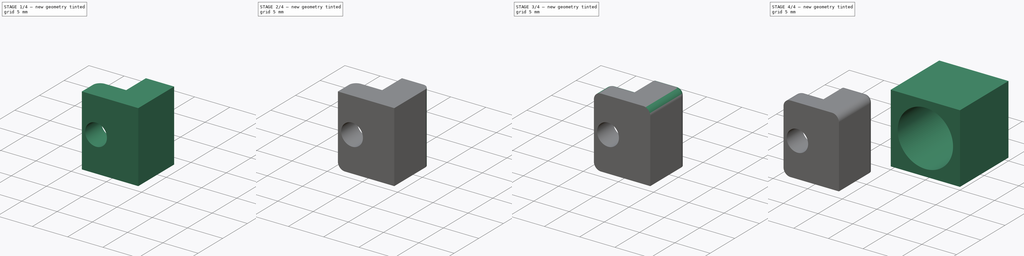
[diagram: build sequence overview — one tinted view per stage of 4, left to right]
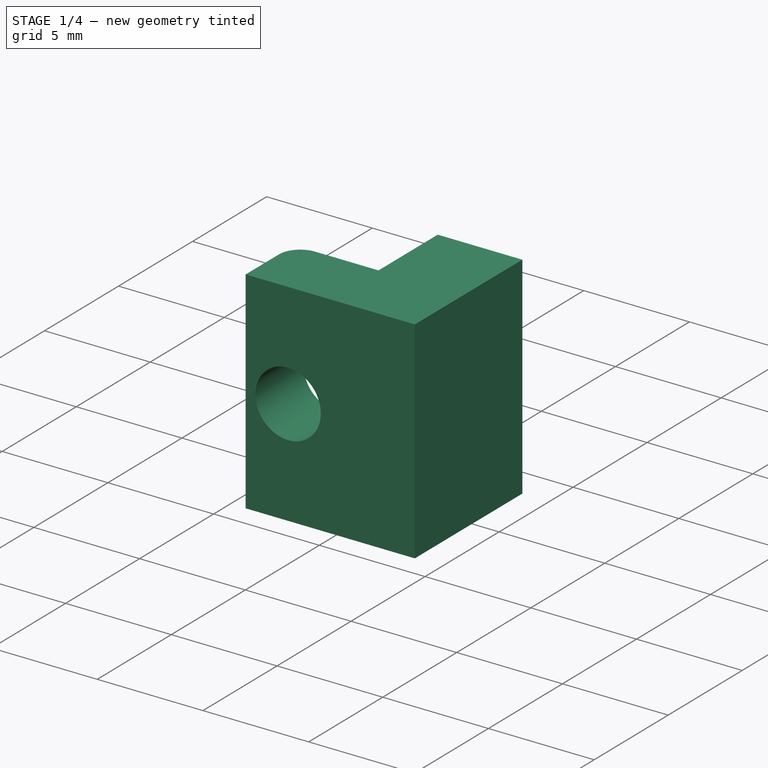
[diagram: stage 1 of 4 — iso view after this stage's code; geometry added in this stage tinted green]
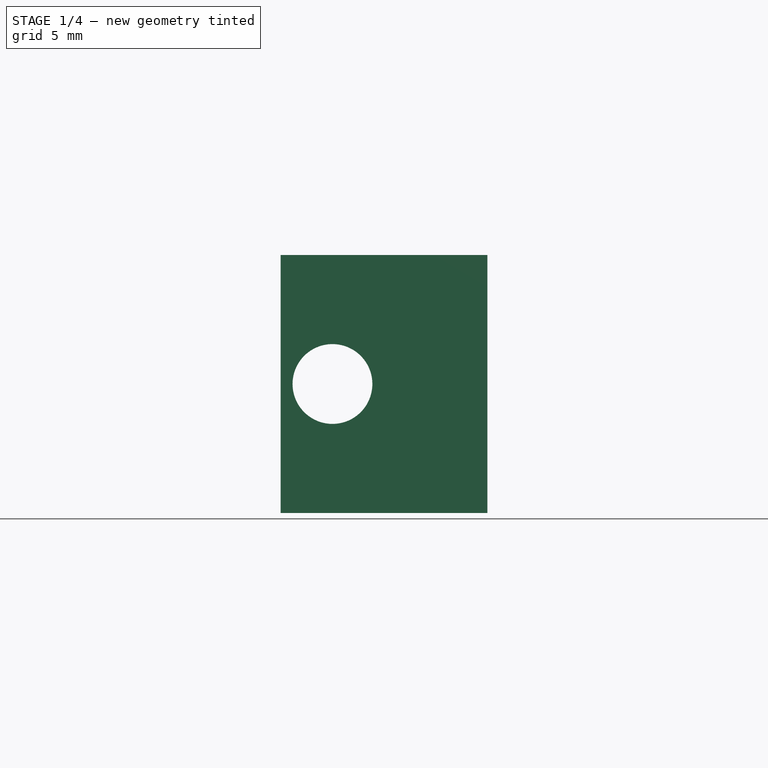
[diagram: stage 1 of 4 — front view after this stage's code; geometry added in this stage tinted green]
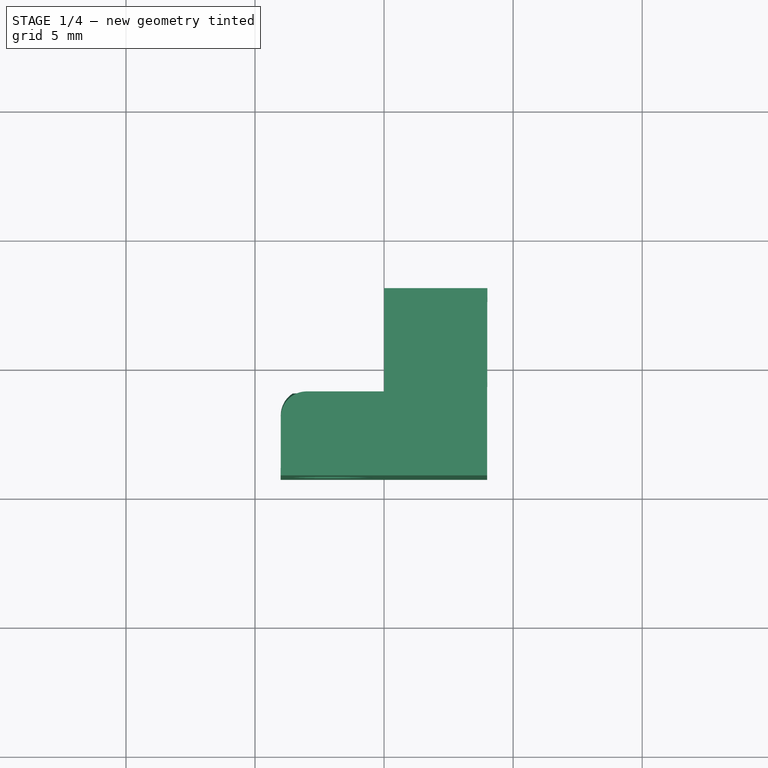
[diagram: stage 1 of 4 — top view after this stage's code; geometry added in this stage tinted green]
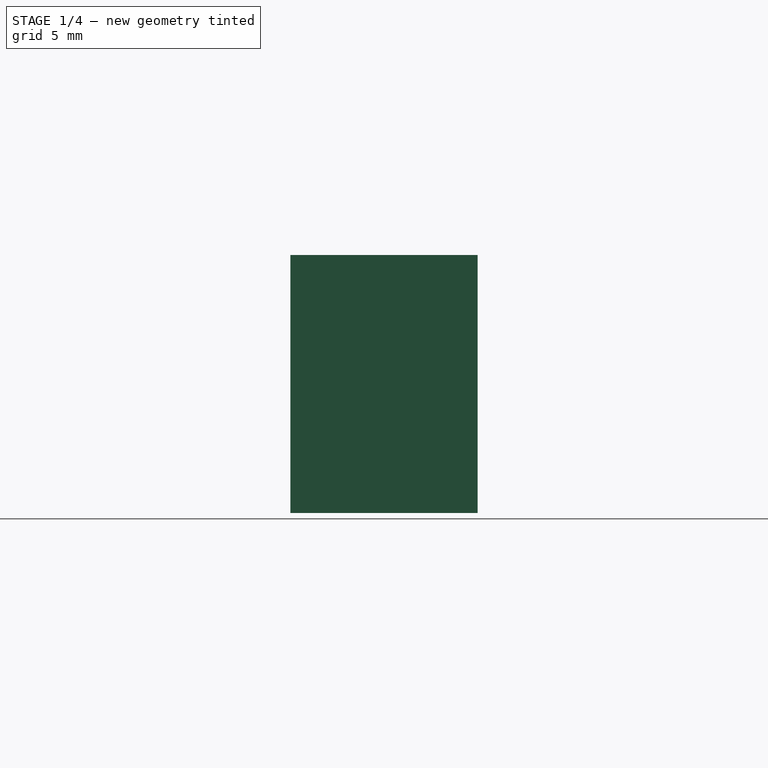
[diagram: stage 1 of 4 — right view after this stage's code; geometry added in this stage tinted green]
FCSTD DOCUMENT  (FreeCAD 0.18R4 (GitTag))
Label: test
License: All rights reserved
LicenseURL: http://en.wikipedia.org/wiki/All_rights_reserved
objects: PartDesign::Fillet×6, Sketcher::SketchObject×3, Part::Box×1, Part::Cylinder×1, Part::Cut×1, PartDesign::Pad×1, PartDesign::Pocket×1, PartDesign::Body×1
note: 17 computed .brp shape members not serialized (recipe doc carries the construction recipe); baked Part::Feature solids carry a one-line shape summary decoded from their .brp

FEATURE [Sketcher::SketchObject] Sketch
  MapMode = 5
  Support = -> [XY_Plane]
  sketch-geometry (8):
    g0: LineSegment StartX=-9 StartY=-6 StartZ=0 EndX=-9.00624 EndY=-9.25098 EndZ=0
    g1: LineSegment StartX=-9.00624 StartY=-9.25098 StartZ=0 EndX=-1.00624 EndY=-9.25098 EndZ=0
    g2: LineSegment StartX=-1.00624 StartY=-9.25098 StartZ=0 EndX=-1.00624 EndY=-6.2336 EndZ=0
    g3: LineSegment StartX=-1.00624 StartY=-6.2336 StartZ=0 EndX=-1 EndY=-2 EndZ=0
    g4: LineSegment StartX=-1 StartY=-2 StartZ=0 EndX=-4 EndY=-2 EndZ=0
    g5: LineSegment StartX=-4 StartY=-2 StartZ=0 EndX=-5 EndY=-2 EndZ=0
    g6: LineSegment StartX=-5 StartY=-2 StartZ=0 EndX=-5 EndY=-6 EndZ=0
    g7: LineSegment StartX=-5 StartY=-6 StartZ=0 EndX=-9 EndY=-6 EndZ=0
  constraints (11):
    c: Coincident(g0,g1)
    c: Horizontal(g1)
    c: Coincident(g1,g2)
    c: Vertical(g2)
    c: Coincident(g2,g3)
    c: Coincident(g4,g5)
    c: Coincident(g5,g6)
    c: Coincident(g6,g7)
    c: Coincident(g7,g0)
    c: Distance(g1) = 8
    c: Coincident(g3,g4)
FEATURE [PartDesign::Pad] Pad
  Length = 10
  Length2 = 100
  Profile = -> Sketch
  Type = 0
FEATURE [Sketcher::SketchObject] Sketch001
  MapMode = 5
  Placement = pos=(0,-6,0) rot=(0,0.707107,0.707107;3.14159rad)
  Support = -> [Pad]
FEATURE [Sketcher::SketchObject] Sketch002
  MapMode = 5
  Placement = pos=(0,-6,0) rot=(0,0.707107,0.707107;3.14159rad)
  Support = -> [Pad]
  sketch-geometry (1):
    g0: Circle CenterX=7 CenterY=5 CenterZ=0 NormalX=0 NormalY=0 NormalZ=1 AngleXU=0 Radius=1.54595
FEATURE [PartDesign::Pocket] Pocket
  BaseFeature = -> Pad
  Length = 5
  Length2 = 100
  Profile = -> Sketch002
  Type = 1
FEATURE [PartDesign::Fillet] Fillet
  Base = -> Pocket [Edge1]
  BaseFeature = -> Pocket
  Radius = 1
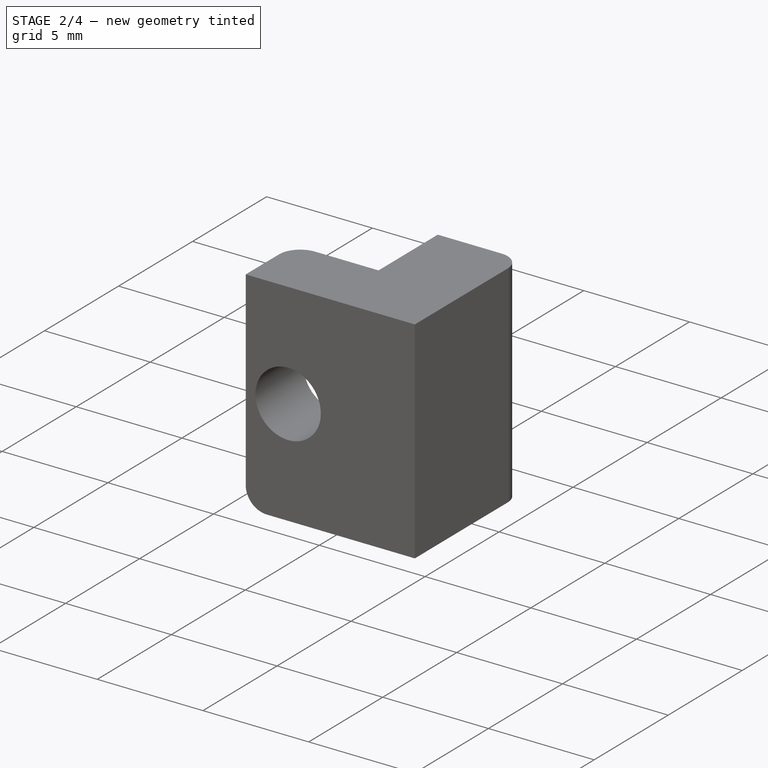
[diagram: stage 2 of 4 — iso view after this stage's code; geometry added in this stage tinted green]
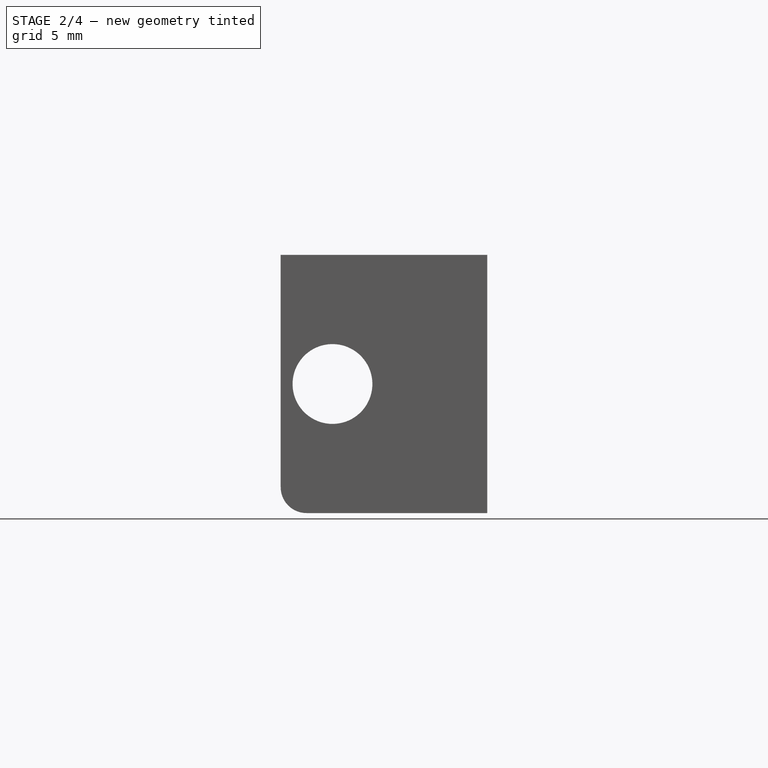
[diagram: stage 2 of 4 — front view after this stage's code; geometry added in this stage tinted green]
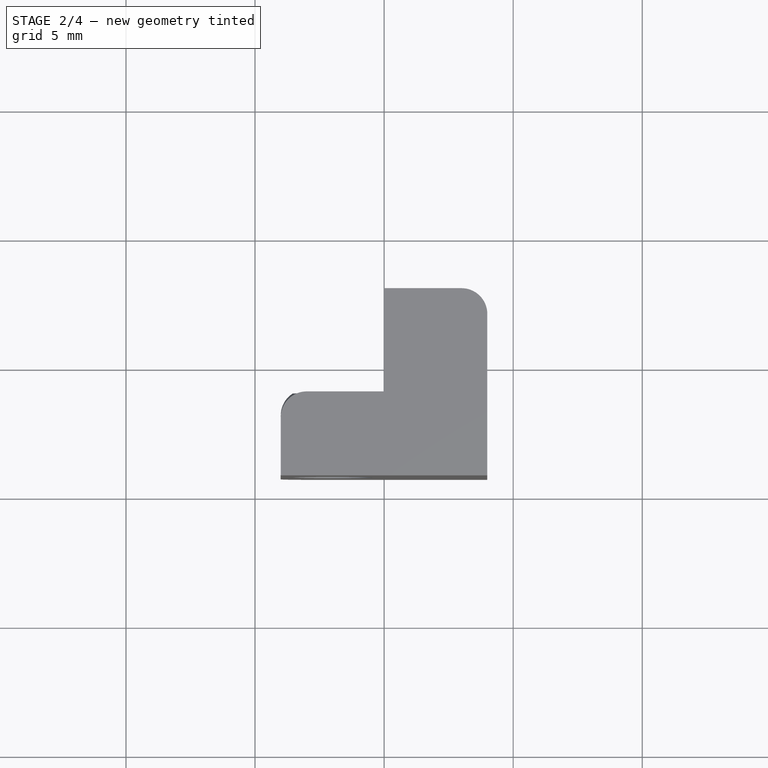
[diagram: stage 2 of 4 — top view after this stage's code; geometry added in this stage tinted green]
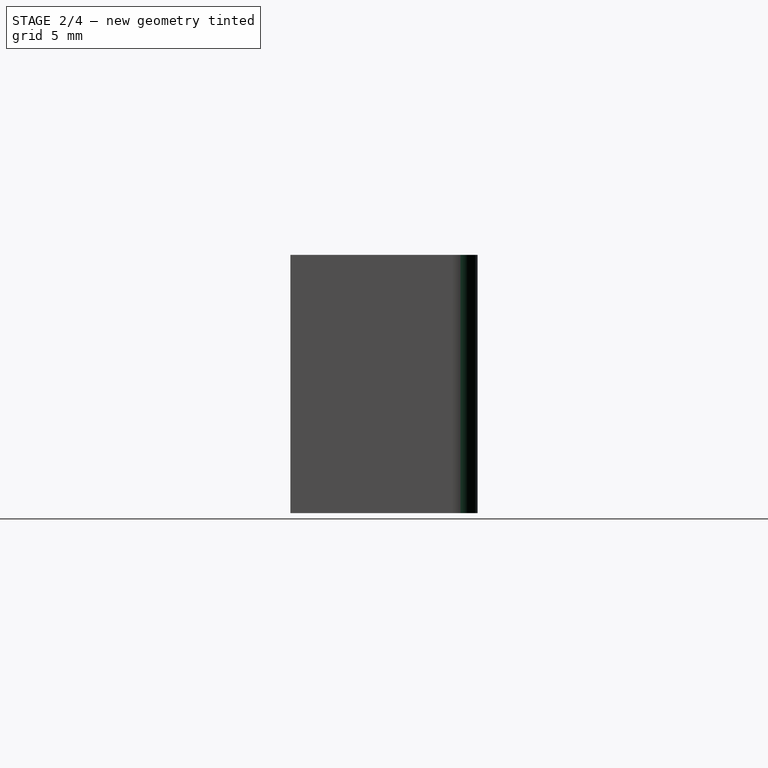
[diagram: stage 2 of 4 — right view after this stage's code; geometry added in this stage tinted green]
FEATURE [PartDesign::Fillet] Fillet001
  Base = -> Fillet [Edge37]
  BaseFeature = -> Fillet
  Radius = 1
FEATURE [PartDesign::Fillet] Fillet002
  Base = -> Fillet001 [Edge8]
  BaseFeature = -> Fillet001
  Radius = 1
FEATURE [PartDesign::Fillet] Fillet003
  Base = -> Fillet002 [Edge4]
  BaseFeature = -> Fillet002
  Radius = 1
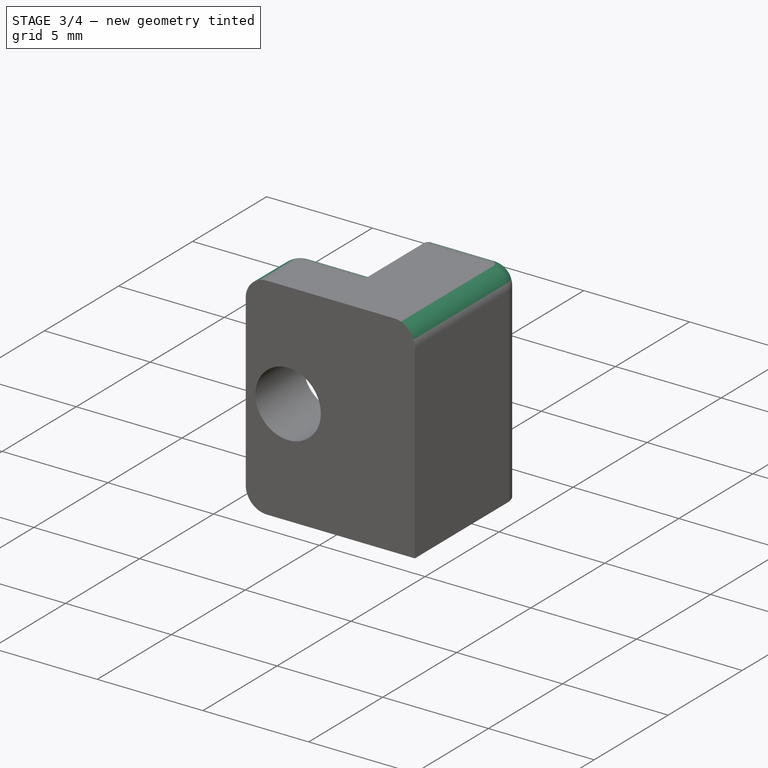
[diagram: stage 3 of 4 — iso view after this stage's code; geometry added in this stage tinted green]
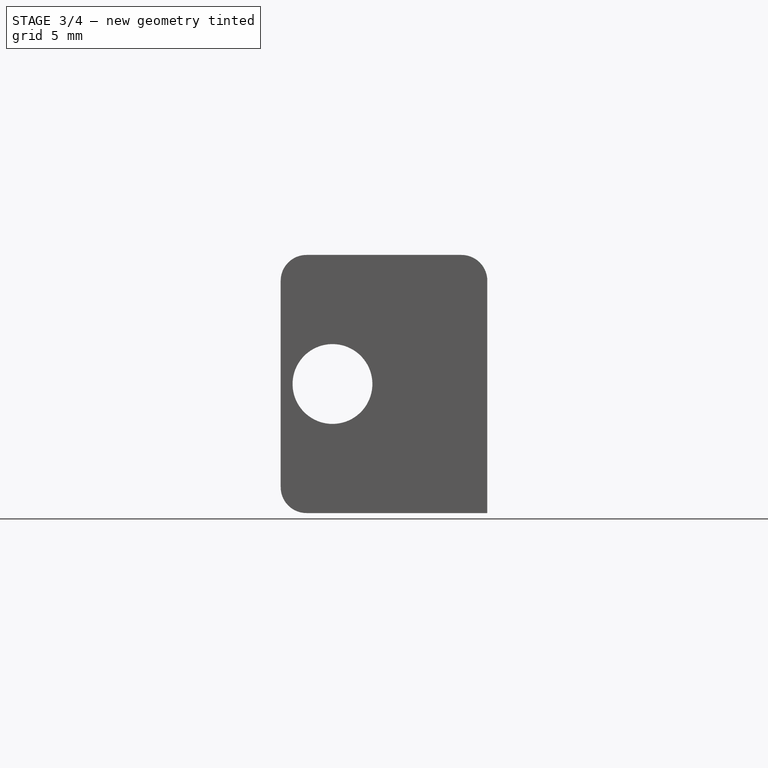
[diagram: stage 3 of 4 — front view after this stage's code; geometry added in this stage tinted green]
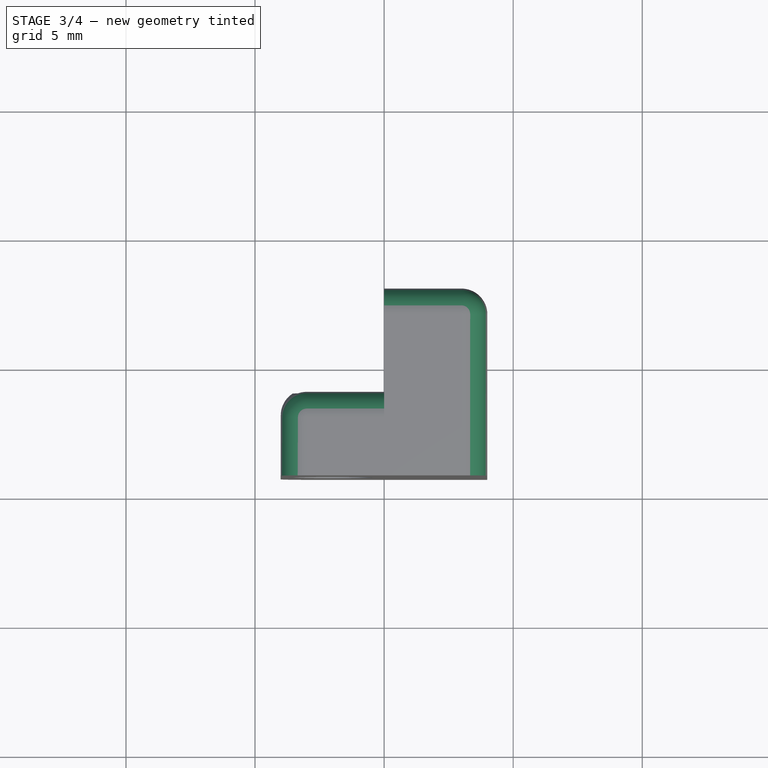
[diagram: stage 3 of 4 — top view after this stage's code; geometry added in this stage tinted green]
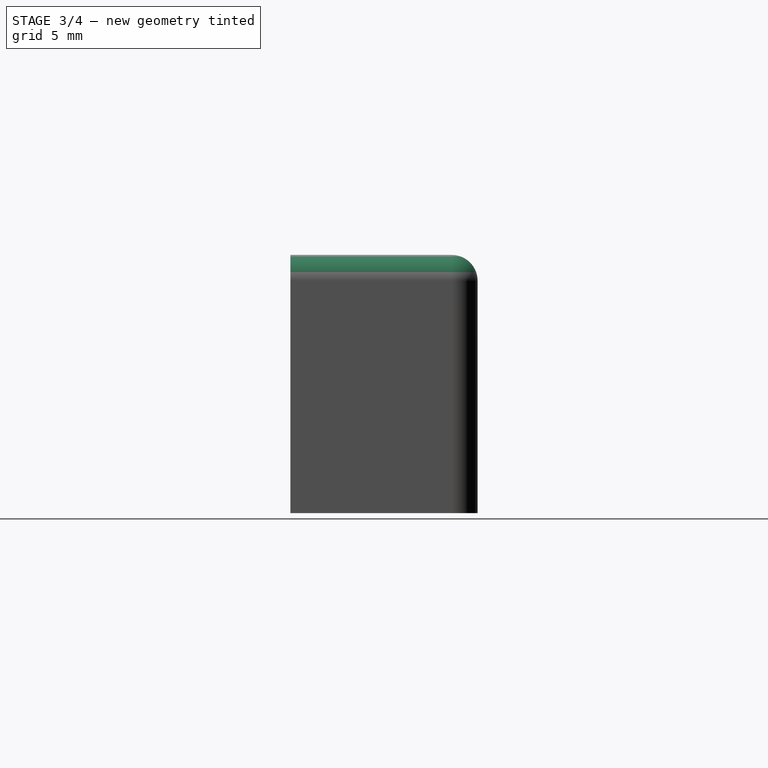
[diagram: stage 3 of 4 — right view after this stage's code; geometry added in this stage tinted green]
FEATURE [PartDesign::Fillet] Fillet004
  Base = -> Fillet003 [Edge31]
  BaseFeature = -> Fillet003
  Radius = 1
FEATURE [PartDesign::Fillet] Fillet005
  Base = -> Fillet004 [Edge13]
  BaseFeature = -> Fillet004
  Radius = 1
FEATURE [PartDesign::Body] Body
  Group = -> [Sketch,Pad,Sketch001,Sketch002,Pocket,Fillet,Fillet001,Fillet002,Fillet003,Fillet004,Fillet005]
  Origin = -> Origin
  Placement = pos=(0,0,9) rot=(1,0,0;315.73rad)
  Tip = -> Fillet005
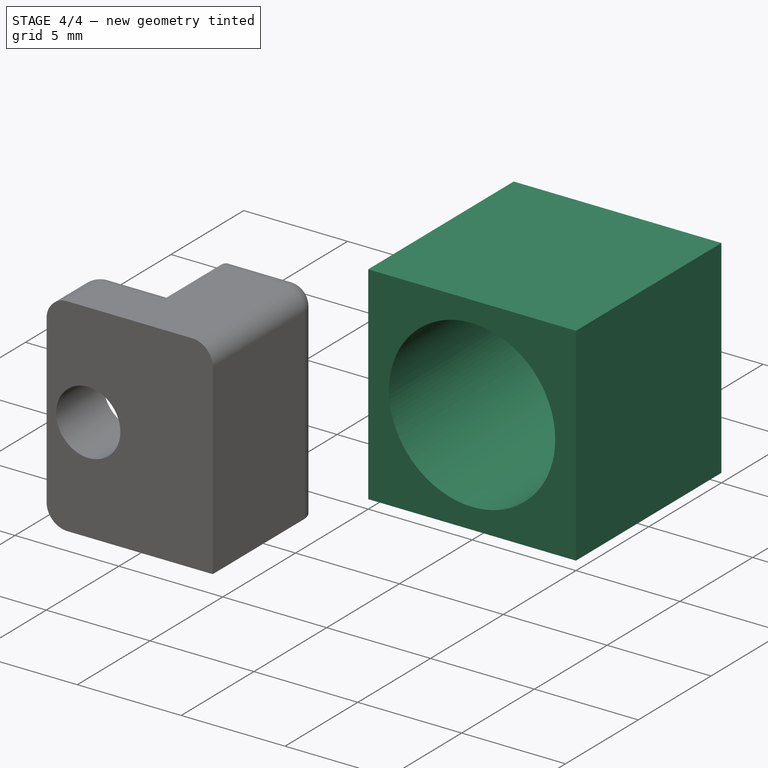
[diagram: stage 4 of 4 — iso view after this stage's code; geometry added in this stage tinted green]
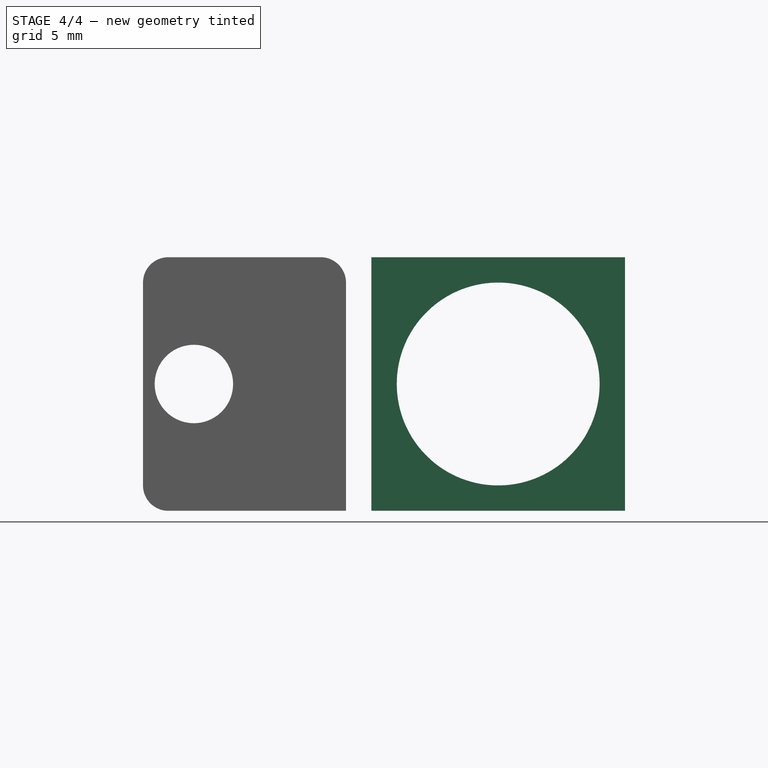
[diagram: stage 4 of 4 — front view after this stage's code; geometry added in this stage tinted green]
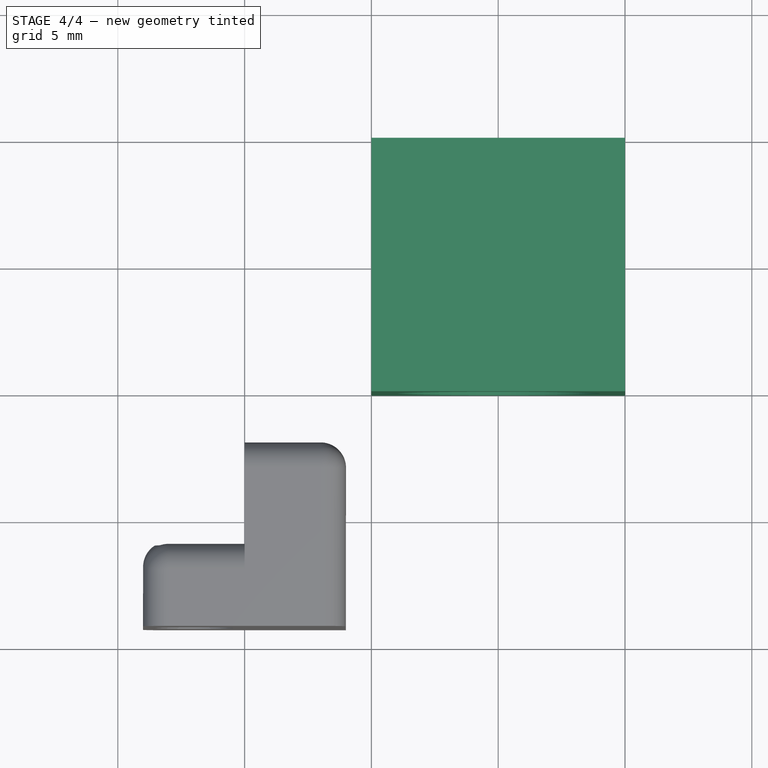
[diagram: stage 4 of 4 — top view after this stage's code; geometry added in this stage tinted green]
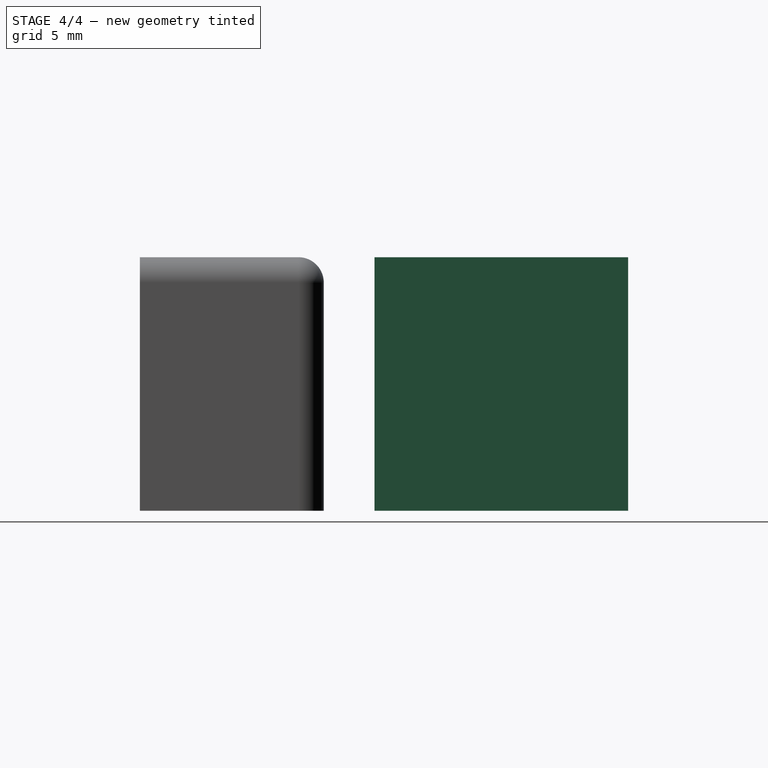
[diagram: stage 4 of 4 — right view after this stage's code; geometry added in this stage tinted green]
FEATURE [Part::Box] Box  label="Cube"
  AttacherType = Attacher::AttachEngine3D
  Height = 10
  Length = 10
  Width = 10
FEATURE [Part::Cylinder] Cylinder
  Angle = 360
  AttacherType = Attacher::AttachEngine3D
  Height = 12
  Placement = pos=(5,11,5) rot=(1,0,0;1.5708rad)
  Radius = 4
FEATURE [Part::Cut] Cut
  Base = -> Box
  Tool = -> Cylinder
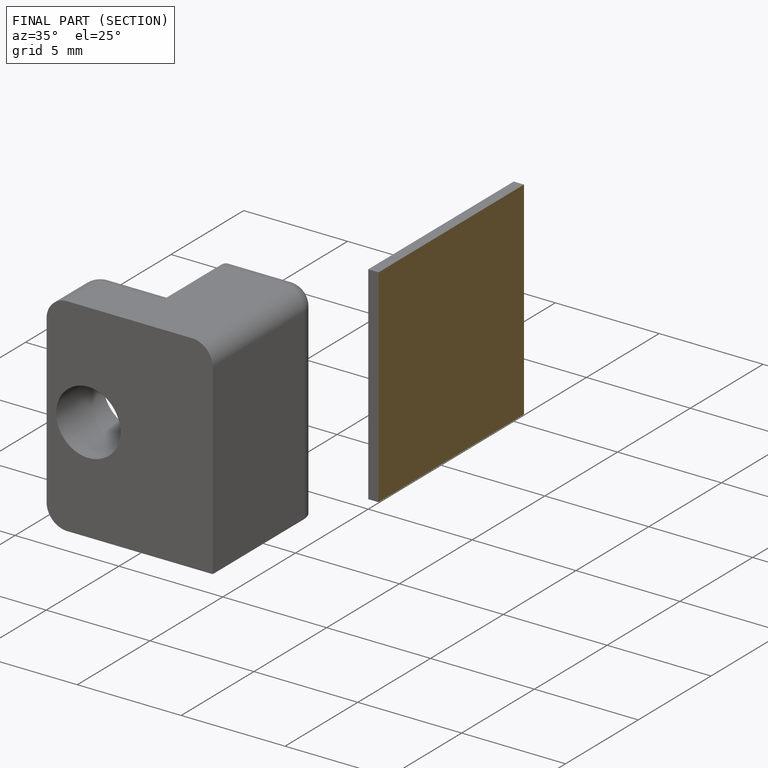
[diagram: finished part — half-section view (interior)]
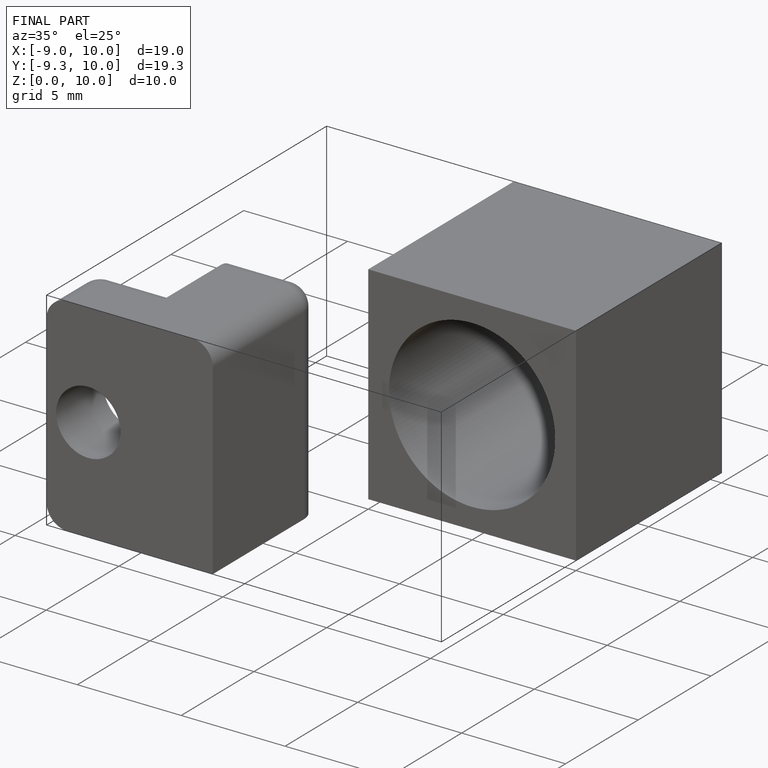
[diagram: finished part — iso view with bounding-box wireframe]
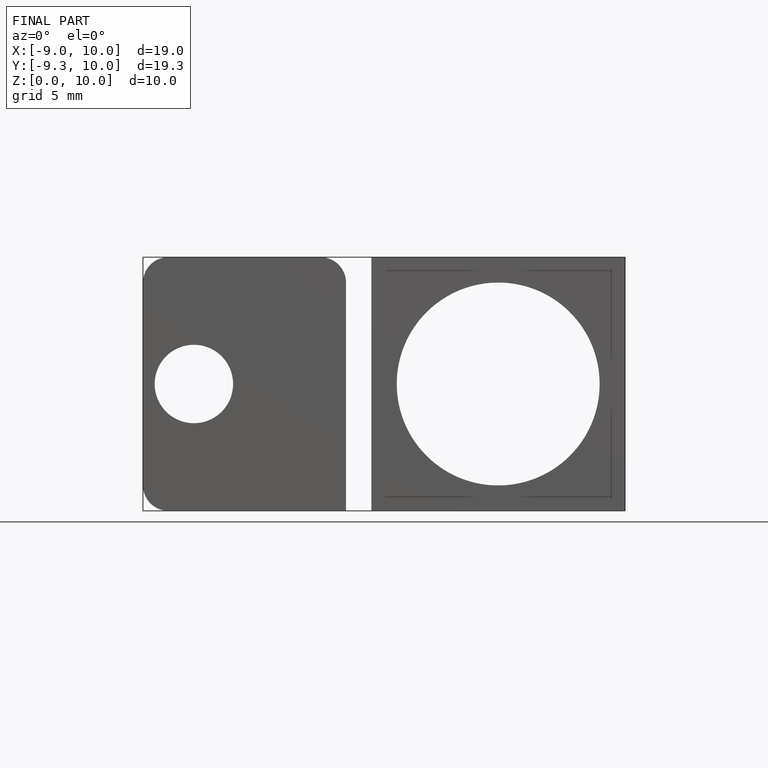
[diagram: finished part — front view with bounding-box wireframe]
